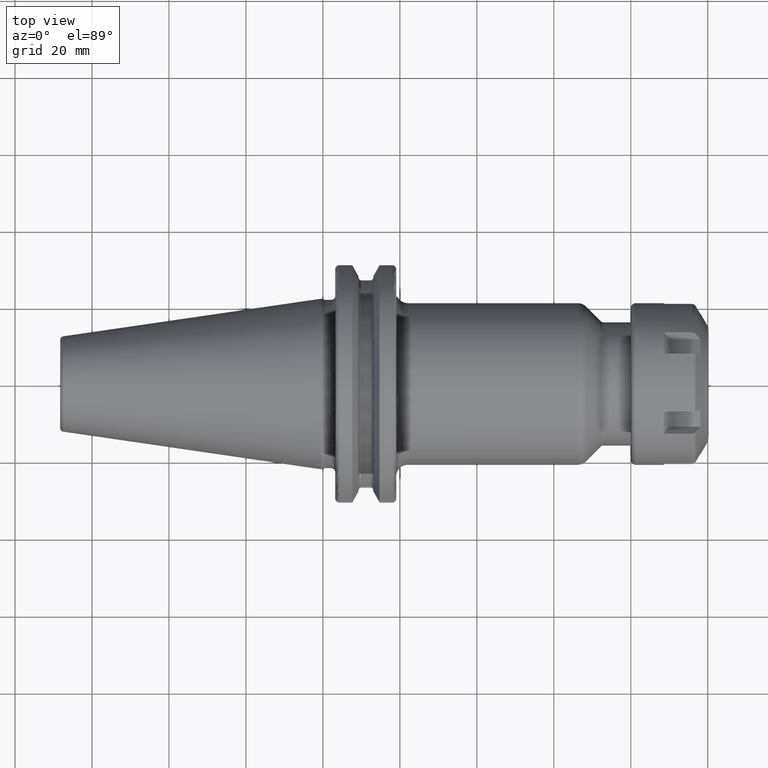
[diagram: clean part render]
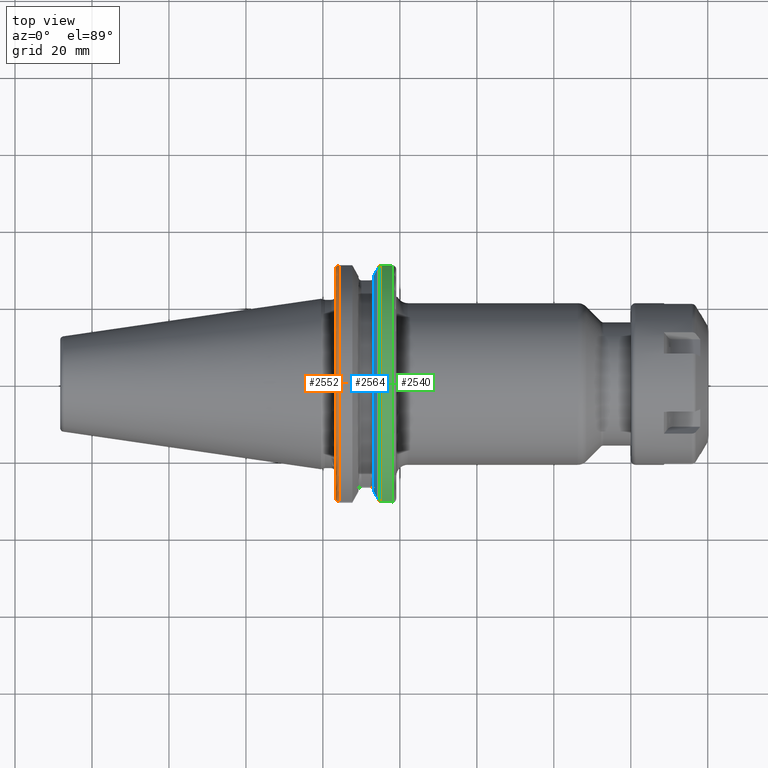
[diagram: same view with three faces highlighted in distinct colors, each labeled with its STEP entity id]
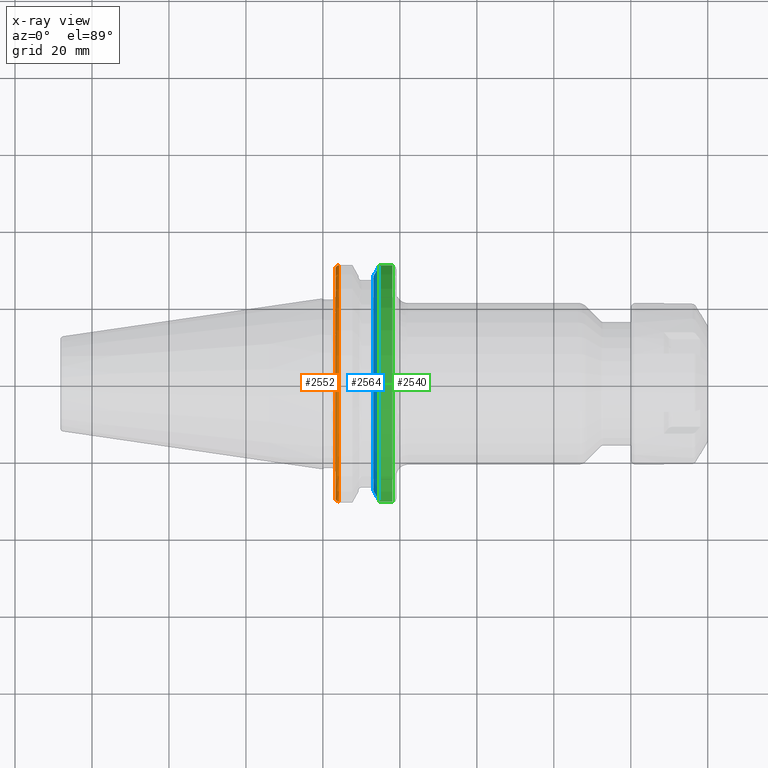
[diagram: x-ray of the same camera — body ghosted, the three highlighted faces saturated]
A machine part, top view with three faces highlighted in distinct colors.
The next image is the same camera in x-ray (body ghosted, the three faces saturated) — at least one of them is partly hidden behind the body in this view.
Their STEP definitions:

[orange] entity #2552 — the highlighted toroidal blend (fillet) surface has major radius 30.7625 mm and minor (blend) radius 1 mm.
#386=CARTESIAN_POINT('',(3.2E0,0.E0,0.E0));
#387=DIRECTION('',(1.E0,0.E0,0.E0));
#388=DIRECTION('',(0.E0,9.647119303464E-1,2.633075985372E-1));
#389=AXIS2_PLACEMENT_3D('',#386,#387,#388);
#854=CARTESIAN_POINT('',(4.2E0,3.071231684927E1,8.1E0));
#855=CARTESIAN_POINT('',(4.122975496592E0,3.071231684927E1,8.1E0));
#856=CARTESIAN_POINT('',(3.973434275890E0,3.069445502310E1,8.1E0));
#857=CARTESIAN_POINT('',(3.757148362145E0,3.061539366421E1,8.1E0));
#858=CARTESIAN_POINT('',(3.565367695912E0,3.048860164744E1,8.1E0));
#859=CARTESIAN_POINT('',(3.407348762296E0,3.032249788839E1,8.1E0));
#860=CARTESIAN_POINT('',(3.289450816159E0,3.012561805664E1,8.1E0));
#861=CARTESIAN_POINT('',(3.216670609282E0,2.990711670215E1,8.1E0));
#862=CARTESIAN_POINT('',(3.2E0,2.975517161523E1,8.1E0));
#863=CARTESIAN_POINT('',(3.2E0,2.967695075728E1,8.1E0));
#865=CARTESIAN_POINT('',(4.2E0,0.E0,0.E0));
#866=DIRECTION('',(1.E0,0.E0,0.E0));
#867=DIRECTION('',(0.E0,9.669363825036E-1,2.550177095632E-1));
#868=AXIS2_PLACEMENT_3D('',#865,#866,#867);
#870=CARTESIAN_POINT('',(3.2E0,-2.967695075728E1,8.1E0));
#871=CARTESIAN_POINT('',(3.2E0,-2.975535829664E1,8.1E0));
#872=CARTESIAN_POINT('',(3.216736704136E0,-2.990767511790E1,8.1E0));
#873=CARTESIAN_POINT('',(3.290003023403E0,-3.012696803037E1,8.1E0));
#874=CARTESIAN_POINT('',(3.408578685874E0,-3.032415560769E1,8.1E0));
#875=CARTESIAN_POINT('',(3.566974678455E0,-3.048991705446E1,8.1E0));
#876=CARTESIAN_POINT('',(3.758498450120E0,-3.061600082070E1,8.1E0));
#877=CARTESIAN_POINT('',(3.973995795704E0,-3.069452712052E1,8.1E0));
#878=CARTESIAN_POINT('',(4.123165215148E0,-3.071231684927E1,8.1E0));
#879=CARTESIAN_POINT('',(4.2E0,-3.071231684927E1,8.1E0));
#1434=CARTESIAN_POINT('',(4.2E0,3.071231684927E1,8.1E0));
#1435=VERTEX_POINT('',#1434);
#1438=CARTESIAN_POINT('',(4.2E0,-3.071231684927E1,8.1E0));
#1439=VERTEX_POINT('',#1438);
#1442=CARTESIAN_POINT('',(3.2E0,2.967695075728E1,8.1E0));
#1444=VERTEX_POINT('',#1442);
#1460=CARTESIAN_POINT('',(3.2E0,-2.967695075728E1,8.1E0));
#1461=VERTEX_POINT('',#1460);
#2541=CARTESIAN_POINT('',(4.2E0,0.E0,0.E0));
#2542=DIRECTION('',(1.E0,0.E0,0.E0));
#2543=DIRECTION('',(0.E0,-1.E0,0.E0));
#2544=AXIS2_PLACEMENT_3D('',#2541,#2542,#2543);
#2545=TOROIDAL_SURFACE('',#2544,3.07625E1,1.E0);
#2546=ORIENTED_EDGE('',*,*,#2131,.F.);
#2547=ORIENTED_EDGE('',*,*,#2523,.T.);
#2548=ORIENTED_EDGE('',*,*,#2412,.F.);
#2549=ORIENTED_EDGE('',*,*,#1950,.F.);
#2550=EDGE_LOOP('',(#2546,#2547,#2548,#2549));
#2551=FACE_OUTER_BOUND('',#2550,.F.);
#2552=ADVANCED_FACE('',(#2551),#2545,.T.);
#390=CIRCLE('',#389,3.07625E1);
#864=B_SPLINE_CURVE_WITH_KNOTS('',3,(#854,#855,#856,#857,#858,#859,#860,#861,
#862,#863),.UNSPECIFIED.,.F.,.F.,(4,1,1,1,1,1,1,4),(0.E0,1.428571428571E-1,
2.857142857143E-1,4.285714285714E-1,5.714285714286E-1,7.142857142857E-1,
8.571428571429E-1,1.E0),.UNSPECIFIED.);
#869=CIRCLE('',#868,3.17625E1);
#880=B_SPLINE_CURVE_WITH_KNOTS('',3,(#870,#871,#872,#873,#874,#875,#876,#877,
#878,#879),.UNSPECIFIED.,.F.,.F.,(4,1,1,1,1,1,1,4),(0.E0,1.428571428571E-1,
2.857142857143E-1,4.285714285714E-1,5.714285714286E-1,7.142857142857E-1,
8.571428571429E-1,1.E0),.UNSPECIFIED.);
#1950=EDGE_CURVE('',#1444,#1461,#390,.T.);
#2131=EDGE_CURVE('',#1435,#1444,#864,.T.);
#2412=EDGE_CURVE('',#1461,#1439,#880,.T.);
#2523=EDGE_CURVE('',#1435,#1439,#869,.T.);

[blue] entity #2564 — the highlighted conical surface has half-angle 60 deg.
#849=CARTESIAN_POINT('',(1.470405352042E1,0.E0,0.E0));
#850=DIRECTION('',(1.E0,0.E0,0.E0));
#851=DIRECTION('',(0.E0,9.669363825036E-1,2.550177095632E-1));
#852=AXIS2_PLACEMENT_3D('',#849,#850,#851);
#881=CARTESIAN_POINT('',(1.470405352042E1,3.071231684927E1,8.1E0));
#882=CARTESIAN_POINT('',(1.451824513517E1,3.037948258059E1,8.1E0));
#883=CARTESIAN_POINT('',(1.415074718503E1,2.972048825911E1,8.1E0));
#884=CARTESIAN_POINT('',(1.361195207986E1,2.875212438619E1,8.1E0));
#885=CARTESIAN_POINT('',(1.326094199325E1,2.811971443922E1,8.1E0));
#886=CARTESIAN_POINT('',(1.30875E1,2.780681820245E1,8.1E0));
#888=CARTESIAN_POINT('',(1.30875E1,-2.780681820245E1,8.1E0));
#889=CARTESIAN_POINT('',(1.326086175289E1,-2.811956968242E1,8.1E0));
#890=CARTESIAN_POINT('',(1.361176448515E1,-2.875178670793E1,8.1E0));
#891=CARTESIAN_POINT('',(1.415055493375E1,-2.972014324708E1,8.1E0));
#892=CARTESIAN_POINT('',(1.451816260441E1,-3.037933474515E1,8.1E0));
#893=CARTESIAN_POINT('',(1.470405352042E1,-3.071231684927E1,8.1E0));
#895=CARTESIAN_POINT('',(1.30875E1,0.E0,0.E0));
#896=DIRECTION('',(1.E0,0.E0,0.E0));
#897=DIRECTION('',(0.E0,9.600957415706E-1,2.796715341576E-1));
#898=AXIS2_PLACEMENT_3D('',#895,#896,#897);
#1392=CARTESIAN_POINT('',(1.30875E1,2.780681820245E1,8.1E0));
#1393=VERTEX_POINT('',#1392);
#1402=CARTESIAN_POINT('',(1.30875E1,-2.780681820245E1,8.1E0));
#1403=VERTEX_POINT('',#1402);
#1412=VERTEX_POINT('',#881);
#1413=VERTEX_POINT('',#893);
#2553=CARTESIAN_POINT('',(1.389577676021E1,0.E0,0.E0));
#2554=DIRECTION('',(1.E0,0.E0,0.E0));
#2555=DIRECTION('',(0.E0,-1.E0,0.E0));
#2556=AXIS2_PLACEMENT_3D('',#2553,#2554,#2555);
#2557=CONICAL_SURFACE('',#2556,3.036252358474E1,6.E1);
#2558=ORIENTED_EDGE('',*,*,#2116,.F.);
#2559=ORIENTED_EDGE('',*,*,#2536,.T.);
#2560=ORIENTED_EDGE('',*,*,#2403,.F.);
#2561=ORIENTED_EDGE('',*,*,#2068,.F.);
#2562=EDGE_LOOP('',(#2558,#2559,#2560,#2561));
#2563=FACE_OUTER_BOUND('',#2562,.F.);
#2564=ADVANCED_FACE('',(#2563),#2557,.T.);
#853=CIRCLE('',#852,3.17625E1);
#887=B_SPLINE_CURVE_WITH_KNOTS('',3,(#881,#882,#883,#884,#885,#886),
.UNSPECIFIED.,.F.,.F.,(4,1,1,4),(0.E0,3.333333333333E-1,6.666666666667E-1,1.E0),
.UNSPECIFIED.);
#894=B_SPLINE_CURVE_WITH_KNOTS('',3,(#888,#889,#890,#891,#892,#893),
.UNSPECIFIED.,.F.,.F.,(4,1,1,4),(0.E0,3.333333333333E-1,6.666666666667E-1,1.E0),
.UNSPECIFIED.);
#899=CIRCLE('',#898,2.896254716948E1);
#2068=EDGE_CURVE('',#1393,#1403,#899,.T.);
#2116=EDGE_CURVE('',#1412,#1393,#887,.T.);
#2403=EDGE_CURVE('',#1403,#1413,#894,.T.);
#2536=EDGE_CURVE('',#1412,#1413,#853,.T.);

[green] entity #2540 — the highlighted cylindrical surface (partial cylindrical patch) has radius 31.7625 mm, axis along (1, 0, 0).
#836=DIRECTION('',(1.E0,0.E0,0.E0));
#837=VECTOR('',#836,3.345946479578E0);
#838=CARTESIAN_POINT('',(1.470405352042E1,3.071231684927E1,8.1E0));
#839=LINE('',#838,#837);
#840=CARTESIAN_POINT('',(1.805E1,0.E0,0.E0));
#841=DIRECTION('',(1.E0,0.E0,0.E0));
#842=DIRECTION('',(0.E0,9.669363825036E-1,2.550177095632E-1));
#843=AXIS2_PLACEMENT_3D('',#840,#841,#842);
#845=DIRECTION('',(1.E0,0.E0,0.E0));
#846=VECTOR('',#845,3.345946479578E0);
#847=CARTESIAN_POINT('',(1.470405352042E1,-3.071231684927E1,8.1E0));
#848=LINE('',#847,#846);
#849=CARTESIAN_POINT('',(1.470405352042E1,0.E0,0.E0));
#850=DIRECTION('',(1.E0,0.E0,0.E0));
#851=DIRECTION('',(0.E0,9.669363825036E-1,2.550177095632E-1));
#852=AXIS2_PLACEMENT_3D('',#849,#850,#851);
#881=CARTESIAN_POINT('',(1.470405352042E1,3.071231684927E1,8.1E0));
#893=CARTESIAN_POINT('',(1.470405352042E1,-3.071231684927E1,8.1E0));
#1412=VERTEX_POINT('',#881);
#1413=VERTEX_POINT('',#893);
#1436=CARTESIAN_POINT('',(1.805E1,3.071231684927E1,8.1E0));
#1437=VERTEX_POINT('',#1436);
#1440=CARTESIAN_POINT('',(1.805E1,-3.071231684927E1,8.1E0));
#1441=VERTEX_POINT('',#1440);
#2528=CARTESIAN_POINT('',(-7.2615E1,0.E0,0.E0));
#2529=DIRECTION('',(1.E0,0.E0,0.E0));
#2530=DIRECTION('',(0.E0,-1.E0,0.E0));
#2531=AXIS2_PLACEMENT_3D('',#2528,#2529,#2530);
#2532=CYLINDRICAL_SURFACE('',#2531,3.17625E1);
#2533=ORIENTED_EDGE('',*,*,#2114,.T.);
#2534=ORIENTED_EDGE('',*,*,#2384,.T.);
#2535=ORIENTED_EDGE('',*,*,#2405,.F.);
#2537=ORIENTED_EDGE('',*,*,#2536,.F.);
#2538=EDGE_LOOP('',(#2533,#2534,#2535,#2537));
#2539=FACE_OUTER_BOUND('',#2538,.F.);
#2540=ADVANCED_FACE('',(#2539),#2532,.T.);
#844=CIRCLE('',#843,3.17625E1);
#853=CIRCLE('',#852,3.17625E1);
#2114=EDGE_CURVE('',#1412,#1437,#839,.T.);
#2384=EDGE_CURVE('',#1437,#1441,#844,.T.);
#2405=EDGE_CURVE('',#1413,#1441,#848,.T.);
#2536=EDGE_CURVE('',#1412,#1413,#853,.T.);